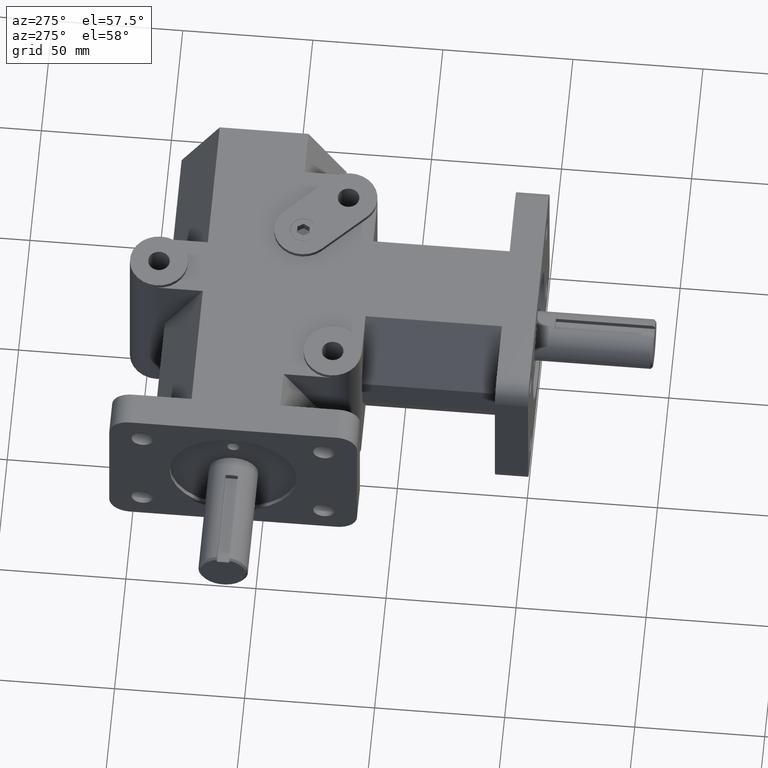
[diagram: clean part render]
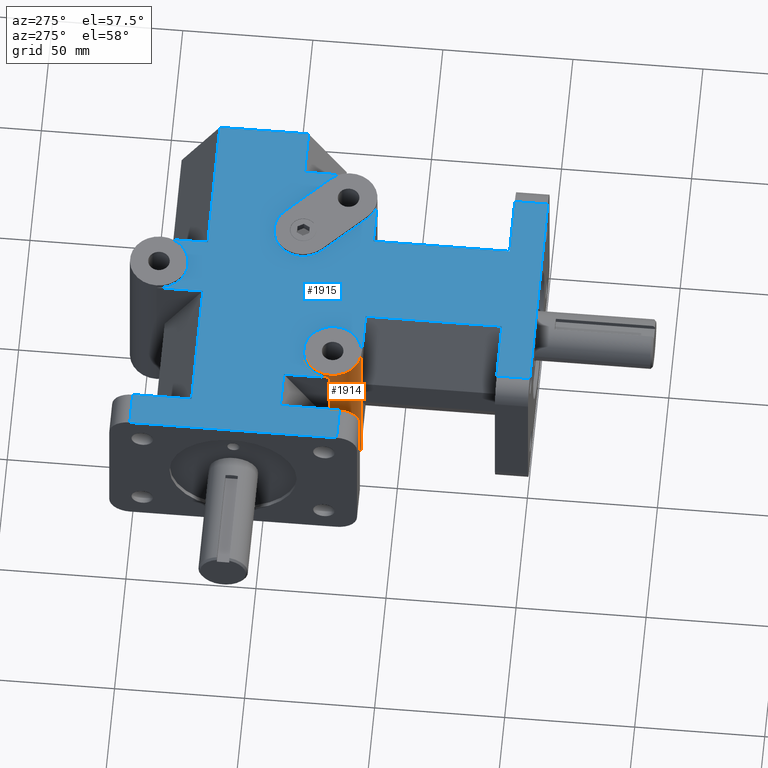
[diagram: same view with the hole feature highlighted: cylindrical wall and planar end face, labeled with their STEP entity ids]
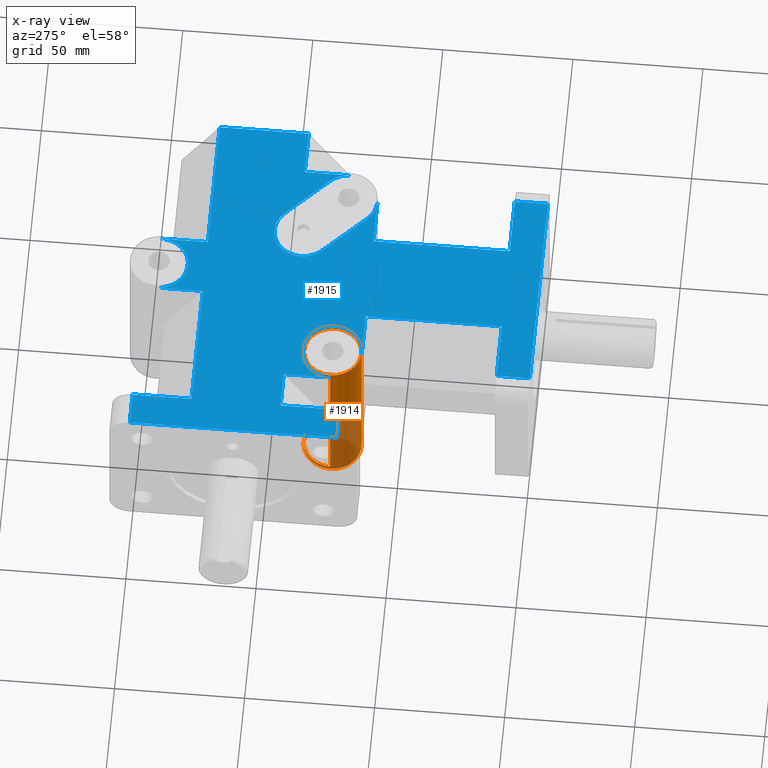
[diagram: x-ray of the same camera — body ghosted, the hole faces saturated]
A machine part, auxiliary view. The highlighted faces form one hole feature of diameter 22.225 mm: the cylindrical wall (entity #1914, orange) and its adjacent planar end face (entity #1915, blue) — they share a circular edge in the B-rep.
The next image is the same camera in x-ray (body ghosted, the hole faces saturated) — the bore reads through the body.
Wall:
#22=LINE('',#2843,#213);
#23=LINE('',#2847,#214);
#24=LINE('',#2851,#215);
#25=LINE('',#2853,#216);
#213=VECTOR('',#2264,0.4375);
#214=VECTOR('',#2267,1.);
#215=VECTOR('',#2270,0.4375);
#216=VECTOR('',#2273,1.);
#404=CYLINDRICAL_SURFACE('',#2049,0.4375);
#477=FACE_OUTER_BOUND('',#595,.T.);
#595=EDGE_LOOP('',(#1290,#1291,#1292,#1293,#1294,#1295,#1296,#1297,#1298,
#1299));
#740=CIRCLE('',#2050,0.4375);
#741=CIRCLE('',#2051,0.4375);
#742=CIRCLE('',#2052,0.4375);
#743=CIRCLE('',#2053,0.4375);
#825=VERTEX_POINT('',#2840);
#826=VERTEX_POINT('',#2842);
#827=VERTEX_POINT('',#2844);
#828=VERTEX_POINT('',#2846);
#829=VERTEX_POINT('',#2848);
#830=VERTEX_POINT('',#2850);
#1010=EDGE_CURVE('',#825,#825,#740,.T.);
#1011=EDGE_CURVE('',#825,#826,#22,.T.);
#1012=EDGE_CURVE('',#827,#826,#741,.T.);
#1013=EDGE_CURVE('',#828,#827,#23,.T.);
#1014=EDGE_CURVE('',#829,#828,#742,.T.);
#1015=EDGE_CURVE('',#829,#830,#24,.T.);
#1016=EDGE_CURVE('',#830,#830,#743,.T.);
#1017=EDGE_CURVE('',#829,#826,#25,.T.);
#1290=ORIENTED_EDGE('',*,*,#1010,.T.);
#1291=ORIENTED_EDGE('',*,*,#1011,.T.);
#1292=ORIENTED_EDGE('',*,*,#1012,.F.);
#1293=ORIENTED_EDGE('',*,*,#1013,.F.);
#1294=ORIENTED_EDGE('',*,*,#1014,.F.);
#1295=ORIENTED_EDGE('',*,*,#1015,.T.);
#1296=ORIENTED_EDGE('',*,*,#1016,.T.);
#1297=ORIENTED_EDGE('',*,*,#1015,.F.);
#1298=ORIENTED_EDGE('',*,*,#1017,.T.);
#1299=ORIENTED_EDGE('',*,*,#1011,.F.);
#1914=ADVANCED_FACE('',(#477),#404,.T.);
#2049=AXIS2_PLACEMENT_3D('',#2839,#2260,#2261);
#2050=AXIS2_PLACEMENT_3D('',#2841,#2262,#2263);
#2051=AXIS2_PLACEMENT_3D('',#2845,#2265,#2266);
#2052=AXIS2_PLACEMENT_3D('',#2849,#2268,#2269);
#2053=AXIS2_PLACEMENT_3D('',#2852,#2271,#2272);
#2260=DIRECTION('center_axis',(0.,0.,-1.));
#2261=DIRECTION('ref_axis',(1.,0.,0.));
#2262=DIRECTION('center_axis',(0.,0.,1.));
#2263=DIRECTION('ref_axis',(1.,0.,0.));
#2264=DIRECTION('',(0.,0.,1.));
#2265=DIRECTION('center_axis',(0.,0.,1.));
#2266=DIRECTION('ref_axis',(1.,0.,0.));
#2267=DIRECTION('',(0.,0.,-1.));
#2268=DIRECTION('center_axis',(0.,0.,-1.));
#2269=DIRECTION('ref_axis',(1.,0.,0.));
#2270=DIRECTION('',(0.,0.,1.));
#2271=DIRECTION('center_axis',(0.,0.,-1.));
#2272=DIRECTION('ref_axis',(1.,0.,0.));
#2273=DIRECTION('',(0.,0.,-1.));
#2839=CARTESIAN_POINT('Origin',(-1.375,3.,0.));
#2840=CARTESIAN_POINT('',(-1.8125,3.,-1.3125));
#2841=CARTESIAN_POINT('Origin',(-1.375,3.,-1.3125));
#2842=CARTESIAN_POINT('',(-1.8125,3.,-1.25));
#2843=CARTESIAN_POINT('',(-1.8125,3.,0.));
#2844=CARTESIAN_POINT('',(-1.375,2.5625,-1.25));
#2845=CARTESIAN_POINT('Origin',(-1.375,3.,-1.25));
#2846=CARTESIAN_POINT('',(-1.375,2.5625,1.25));
#2847=CARTESIAN_POINT('',(-1.375,2.5625,-0.16));
#2848=CARTESIAN_POINT('',(-1.8125,3.,1.25));
#2849=CARTESIAN_POINT('Origin',(-1.375,3.,1.25));
#2850=CARTESIAN_POINT('',(-1.8125,3.,1.3125));
#2851=CARTESIAN_POINT('',(-1.8125,3.,0.));
#2852=CARTESIAN_POINT('Origin',(-1.375,3.,1.3125));
#2853=CARTESIAN_POINT('',(-1.8125,3.,0.));
End face:
#26=LINE('',#2857,#217);
#27=LINE('',#2859,#218);
#28=LINE('',#2861,#219);
#29=LINE('',#2863,#220);
#30=LINE('',#2867,#221);
#31=LINE('',#2871,#222);
#32=LINE('',#2875,#223);
#33=LINE('',#2877,#224);
#34=LINE('',#2879,#225);
#35=LINE('',#2881,#226);
#36=LINE('',#2883,#227);
#37=LINE('',#2887,#228);
#38=LINE('',#2889,#229);
#39=LINE('',#2891,#230);
#40=LINE('',#2893,#231);
#41=LINE('',#2895,#232);
#42=LINE('',#2897,#233);
#43=LINE('',#2899,#234);
#44=LINE('',#2901,#235);
#45=LINE('',#2902,#236);
#46=LINE('',#2904,#237);
#47=LINE('',#2906,#238);
#48=LINE('',#2908,#239);
#49=LINE('',#2910,#240);
#50=LINE('',#2911,#241);
#217=VECTOR('',#2276,1.);
#218=VECTOR('',#2277,1.);
#219=VECTOR('',#2278,1.);
#220=VECTOR('',#2279,1.);
#221=VECTOR('',#2282,1.);
#222=VECTOR('',#2285,1.);
#223=VECTOR('',#2288,1.);
#224=VECTOR('',#2289,1.);
#225=VECTOR('',#2290,1.);
#226=VECTOR('',#2291,1.);
#227=VECTOR('',#2292,1.);
#228=VECTOR('',#2295,1.);
#229=VECTOR('',#2296,1.);
#230=VECTOR('',#2297,1.);
#231=VECTOR('',#2298,1.);
#232=VECTOR('',#2299,1.);
#233=VECTOR('',#2300,1.);
#234=VECTOR('',#2301,1.);
#235=VECTOR('',#2302,1.);
#236=VECTOR('',#2303,1.);
#237=VECTOR('',#2304,1.);
#238=VECTOR('',#2305,1.);
#239=VECTOR('',#2306,1.);
#240=VECTOR('',#2307,1.);
#241=VECTOR('',#2308,1.);
#478=FACE_OUTER_BOUND('',#596,.T.);
#596=EDGE_LOOP('',(#1300,#1301,#1302,#1303,#1304,#1305,#1306,#1307,#1308,
#1309,#1310,#1311,#1312,#1313,#1314,#1315,#1316,#1317,#1318,#1319,#1320,
#1321,#1322,#1323,#1324,#1325,#1326,#1327,#1328,#1329));
#742=CIRCLE('',#2052,0.4375);
#744=CIRCLE('',#2055,0.4375);
#745=CIRCLE('',#2056,0.4375);
#746=CIRCLE('',#2057,0.4375);
#747=CIRCLE('',#2058,0.4375);
#828=VERTEX_POINT('',#2846);
#829=VERTEX_POINT('',#2848);
#831=VERTEX_POINT('',#2855);
#832=VERTEX_POINT('',#2856);
#833=VERTEX_POINT('',#2858);
#834=VERTEX_POINT('',#2860);
#835=VERTEX_POINT('',#2862);
#836=VERTEX_POINT('',#2864);
#837=VERTEX_POINT('',#2866);
#838=VERTEX_POINT('',#2868);
#839=VERTEX_POINT('',#2870);
#840=VERTEX_POINT('',#2872);
#841=VERTEX_POINT('',#2874);
#842=VERTEX_POINT('',#2876);
#843=VERTEX_POINT('',#2878);
#844=VERTEX_POINT('',#2880);
#845=VERTEX_POINT('',#2882);
#846=VERTEX_POINT('',#2884);
#847=VERTEX_POINT('',#2886);
#848=VERTEX_POINT('',#2888);
#849=VERTEX_POINT('',#2890);
#850=VERTEX_POINT('',#2892);
#851=VERTEX_POINT('',#2894);
#852=VERTEX_POINT('',#2896);
#853=VERTEX_POINT('',#2898);
#854=VERTEX_POINT('',#2900);
#855=VERTEX_POINT('',#2903);
#856=VERTEX_POINT('',#2905);
#857=VERTEX_POINT('',#2907);
#858=VERTEX_POINT('',#2909);
#1014=EDGE_CURVE('',#829,#828,#742,.T.);
#1018=EDGE_CURVE('',#831,#832,#26,.T.);
#1019=EDGE_CURVE('',#833,#831,#27,.T.);
#1020=EDGE_CURVE('',#834,#833,#28,.T.);
#1021=EDGE_CURVE('',#835,#834,#29,.T.);
#1022=EDGE_CURVE('',#835,#836,#744,.T.);
#1023=EDGE_CURVE('',#836,#837,#30,.T.);
#1024=EDGE_CURVE('',#837,#838,#745,.T.);
#1025=EDGE_CURVE('',#838,#839,#31,.T.);
#1026=EDGE_CURVE('',#839,#840,#746,.T.);
#1027=EDGE_CURVE('',#841,#840,#32,.T.);
#1028=EDGE_CURVE('',#842,#841,#33,.T.);
#1029=EDGE_CURVE('',#842,#843,#34,.T.);
#1030=EDGE_CURVE('',#844,#843,#35,.T.);
#1031=EDGE_CURVE('',#845,#844,#36,.T.);
#1032=EDGE_CURVE('',#845,#846,#747,.T.);
#1033=EDGE_CURVE('',#847,#846,#37,.T.);
#1034=EDGE_CURVE('',#848,#847,#38,.T.);
#1035=EDGE_CURVE('',#849,#848,#39,.T.);
#1036=EDGE_CURVE('',#850,#849,#40,.T.);
#1037=EDGE_CURVE('',#851,#850,#41,.T.);
#1038=EDGE_CURVE('',#852,#851,#42,.T.);
#1039=EDGE_CURVE('',#853,#852,#43,.T.);
#1040=EDGE_CURVE('',#854,#853,#44,.T.);
#1041=EDGE_CURVE('',#829,#854,#45,.T.);
#1042=EDGE_CURVE('',#855,#828,#46,.T.);
#1043=EDGE_CURVE('',#856,#855,#47,.T.);
#1044=EDGE_CURVE('',#857,#856,#48,.T.);
#1045=EDGE_CURVE('',#858,#857,#49,.T.);
#1046=EDGE_CURVE('',#832,#858,#50,.T.);
#1300=ORIENTED_EDGE('',*,*,#1018,.F.);
#1301=ORIENTED_EDGE('',*,*,#1019,.F.);
#1302=ORIENTED_EDGE('',*,*,#1020,.F.);
#1303=ORIENTED_EDGE('',*,*,#1021,.F.);
#1304=ORIENTED_EDGE('',*,*,#1022,.T.);
#1305=ORIENTED_EDGE('',*,*,#1023,.T.);
#1306=ORIENTED_EDGE('',*,*,#1024,.T.);
#1307=ORIENTED_EDGE('',*,*,#1025,.T.);
#1308=ORIENTED_EDGE('',*,*,#1026,.T.);
#1309=ORIENTED_EDGE('',*,*,#1027,.F.);
#1310=ORIENTED_EDGE('',*,*,#1028,.F.);
#1311=ORIENTED_EDGE('',*,*,#1029,.T.);
#1312=ORIENTED_EDGE('',*,*,#1030,.F.);
#1313=ORIENTED_EDGE('',*,*,#1031,.F.);
#1314=ORIENTED_EDGE('',*,*,#1032,.T.);
#1315=ORIENTED_EDGE('',*,*,#1033,.F.);
#1316=ORIENTED_EDGE('',*,*,#1034,.F.);
#1317=ORIENTED_EDGE('',*,*,#1035,.F.);
#1318=ORIENTED_EDGE('',*,*,#1036,.F.);
#1319=ORIENTED_EDGE('',*,*,#1037,.F.);
#1320=ORIENTED_EDGE('',*,*,#1038,.F.);
#1321=ORIENTED_EDGE('',*,*,#1039,.F.);
#1322=ORIENTED_EDGE('',*,*,#1040,.F.);
#1323=ORIENTED_EDGE('',*,*,#1041,.F.);
#1324=ORIENTED_EDGE('',*,*,#1014,.T.);
#1325=ORIENTED_EDGE('',*,*,#1042,.F.);
#1326=ORIENTED_EDGE('',*,*,#1043,.F.);
#1327=ORIENTED_EDGE('',*,*,#1044,.F.);
#1328=ORIENTED_EDGE('',*,*,#1045,.F.);
#1329=ORIENTED_EDGE('',*,*,#1046,.F.);
#1842=PLANE('',#2054);
#1915=ADVANCED_FACE('',(#478),#1842,.T.);
#2052=AXIS2_PLACEMENT_3D('',#2849,#2268,#2269);
#2054=AXIS2_PLACEMENT_3D('',#2854,#2274,#2275);
#2055=AXIS2_PLACEMENT_3D('',#2865,#2280,#2281);
#2056=AXIS2_PLACEMENT_3D('',#2869,#2283,#2284);
#2057=AXIS2_PLACEMENT_3D('',#2873,#2286,#2287);
#2058=AXIS2_PLACEMENT_3D('',#2885,#2293,#2294);
#2268=DIRECTION('center_axis',(0.,0.,-1.));
#2269=DIRECTION('ref_axis',(1.,0.,0.));
#2274=DIRECTION('center_axis',(0.,0.,1.));
#2275=DIRECTION('ref_axis',(-1.,0.,0.));
#2276=DIRECTION('',(0.,-1.,0.));
#2277=DIRECTION('',(1.,0.,0.));
#2278=DIRECTION('',(0.,-1.,0.));
#2279=DIRECTION('',(-1.,0.,0.));
#2280=DIRECTION('center_axis',(0.,0.,-1.));
#2281=DIRECTION('ref_axis',(1.,0.,0.));
#2282=DIRECTION('',(-0.707106781186547,0.707106781186548,0.));
#2283=DIRECTION('center_axis',(0.,0.,-1.));
#2284=DIRECTION('ref_axis',(1.,0.,0.));
#2285=DIRECTION('',(0.707106781186547,-0.707106781186548,0.));
#2286=DIRECTION('center_axis',(0.,0.,-1.));
#2287=DIRECTION('ref_axis',(1.,0.,0.));
#2288=DIRECTION('',(0.,-1.,0.));
#2289=DIRECTION('',(-1.,0.,0.));
#2290=DIRECTION('',(0.,1.,0.));
#2291=DIRECTION('',(1.,0.,0.));
#2292=DIRECTION('',(0.,-1.,0.));
#2293=DIRECTION('center_axis',(0.,0.,-1.));
#2294=DIRECTION('ref_axis',(1.,0.,0.));
#2295=DIRECTION('',(0.,1.,0.));
#2296=DIRECTION('',(1.,0.,0.));
#2297=DIRECTION('',(0.,-1.,0.));
#2298=DIRECTION('',(1.,0.,0.));
#2299=DIRECTION('',(0.,1.,0.));
#2300=DIRECTION('',(-1.,0.,0.));
#2301=DIRECTION('',(0.,-1.,0.));
#2302=DIRECTION('',(-1.,0.,0.));
#2303=DIRECTION('',(0.,1.,0.));
#2304=DIRECTION('',(-1.,0.,0.));
#2305=DIRECTION('',(0.,1.,0.));
#2306=DIRECTION('',(1.,0.,0.));
#2307=DIRECTION('',(0.,1.,0.));
#2308=DIRECTION('',(-1.,0.,0.));
#2846=CARTESIAN_POINT('',(-1.375,2.5625,1.25));
#2848=CARTESIAN_POINT('',(-1.8125,3.,1.25));
#2849=CARTESIAN_POINT('Origin',(-1.375,3.,1.25));
#2854=CARTESIAN_POINT('Origin',(2.34404509691366E-16,3.25983880887387,1.25));
#2855=CARTESIAN_POINT('',(1.565,0.5,1.25));
#2856=CARTESIAN_POINT('',(1.565,0.,1.25));
#2857=CARTESIAN_POINT('',(1.565,1.62991940443693,1.25));
#2858=CARTESIAN_POINT('',(0.67265,0.5,1.25));
#2859=CARTESIAN_POINT('',(1.25,0.5,1.25));
#2860=CARTESIAN_POINT('',(0.67265,2.5625,1.25));
#2861=CARTESIAN_POINT('',(0.67265,1.87991940443693,1.25));
#2862=CARTESIAN_POINT('',(1.375,2.5625,1.25));
#2863=CARTESIAN_POINT('',(0.625,2.5625,1.25));
#2864=CARTESIAN_POINT('',(1.06564078323088,2.69064078323089,1.25));
#2865=CARTESIAN_POINT('Origin',(1.375,3.,1.25));
#2866=CARTESIAN_POINT('',(0.435640783230885,3.32064078323089,1.25));
#2867=CARTESIAN_POINT('',(0.656931081012418,3.09935048544935,1.25));
#2868=CARTESIAN_POINT('',(1.05435921676911,3.93935921676911,1.25));
#2869=CARTESIAN_POINT('Origin',(0.745,3.63,1.25));
#2870=CARTESIAN_POINT('',(1.68435921676911,3.30935921676911,1.25));
#2871=CARTESIAN_POINT('',(0.960649514550648,4.03306891898758,1.25));
#2872=CARTESIAN_POINT('',(1.8125,3.,1.25));
#2873=CARTESIAN_POINT('Origin',(1.375,3.,1.25));
#2874=CARTESIAN_POINT('',(1.8125,3.70235,1.25));
#2875=CARTESIAN_POINT('',(1.8125,3.,1.25));
#2876=CARTESIAN_POINT('',(2.5,3.70235,1.25));
#2877=CARTESIAN_POINT('',(0.90625,3.70235,1.25));
#2878=CARTESIAN_POINT('',(2.5,5.04765,1.25));
#2879=CARTESIAN_POINT('',(2.5,-0.71328836730994,1.25));
#2880=CARTESIAN_POINT('',(0.4375,5.04765,1.25));
#2881=CARTESIAN_POINT('',(1.1875,5.04765,1.25));
#2882=CARTESIAN_POINT('',(0.4375,5.75,1.25));
#2883=CARTESIAN_POINT('',(0.4375,4.44241940443693,1.25));
#2884=CARTESIAN_POINT('',(-0.4375,5.75,1.25));
#2885=CARTESIAN_POINT('Origin',(0.,5.75,1.25));
#2886=CARTESIAN_POINT('',(-0.4375,5.04765,1.25));
#2887=CARTESIAN_POINT('',(-0.4375,5.625,1.25));
#2888=CARTESIAN_POINT('',(-2.375,5.04765,1.25));
#2889=CARTESIAN_POINT('',(-0.21875,5.04765,1.25));
#2890=CARTESIAN_POINT('',(-2.375,5.94,1.25));
#2891=CARTESIAN_POINT('',(-2.375,4.44241940443693,1.25));
#2892=CARTESIAN_POINT('',(-2.875,5.94,1.25));
#2893=CARTESIAN_POINT('',(-1.1875,5.94,1.25));
#2894=CARTESIAN_POINT('',(-2.875,2.81,1.25));
#2895=CARTESIAN_POINT('',(-2.875,2.5,1.25));
#2896=CARTESIAN_POINT('',(-2.375,2.81,1.25));
#2897=CARTESIAN_POINT('',(-1.4375,2.81,1.25));
#2898=CARTESIAN_POINT('',(-2.375,3.70235,1.25));
#2899=CARTESIAN_POINT('',(-2.375,2.5,1.25));
#2900=CARTESIAN_POINT('',(-1.8125,3.70235,1.25));
#2901=CARTESIAN_POINT('',(-1.1875,3.70235,1.25));
#2902=CARTESIAN_POINT('',(-1.8125,3.19241940443693,1.25));
#2903=CARTESIAN_POINT('',(-0.67265,2.5625,1.25));
#2904=CARTESIAN_POINT('',(-0.687500000000001,2.5625,1.25));
#2905=CARTESIAN_POINT('',(-0.67265,0.5,1.25));
#2906=CARTESIAN_POINT('',(-0.67265,2.91116940443693,1.25));
#2907=CARTESIAN_POINT('',(-1.565,0.5,1.25));
#2908=CARTESIAN_POINT('',(-0.625,0.5,1.25));
#2909=CARTESIAN_POINT('',(-1.565,0.,1.25));
#2910=CARTESIAN_POINT('',(-1.565,1.87991940443693,1.25));
#2911=CARTESIAN_POINT('',(-1.875,0.,1.25));